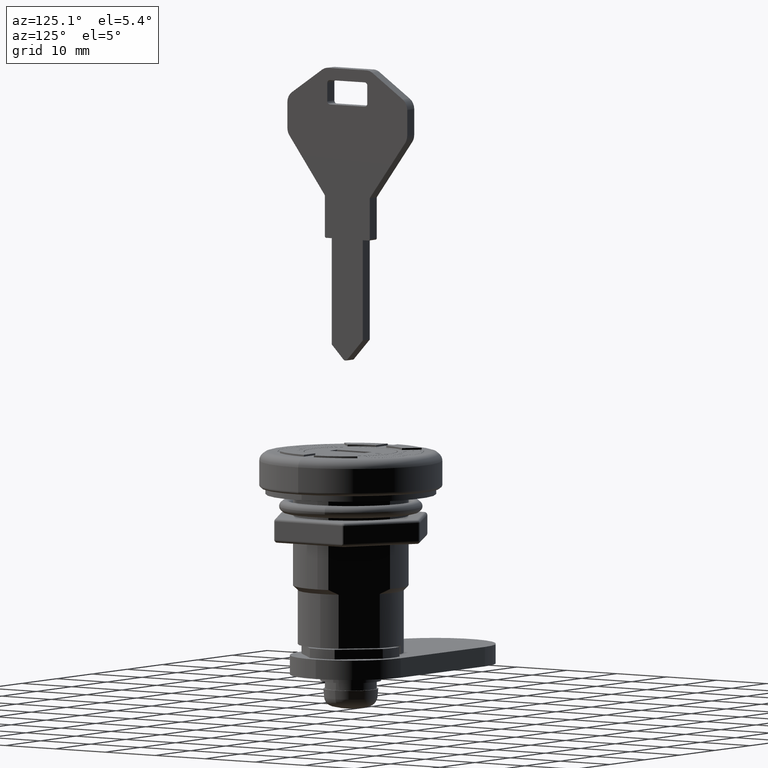
[diagram: clean part render]
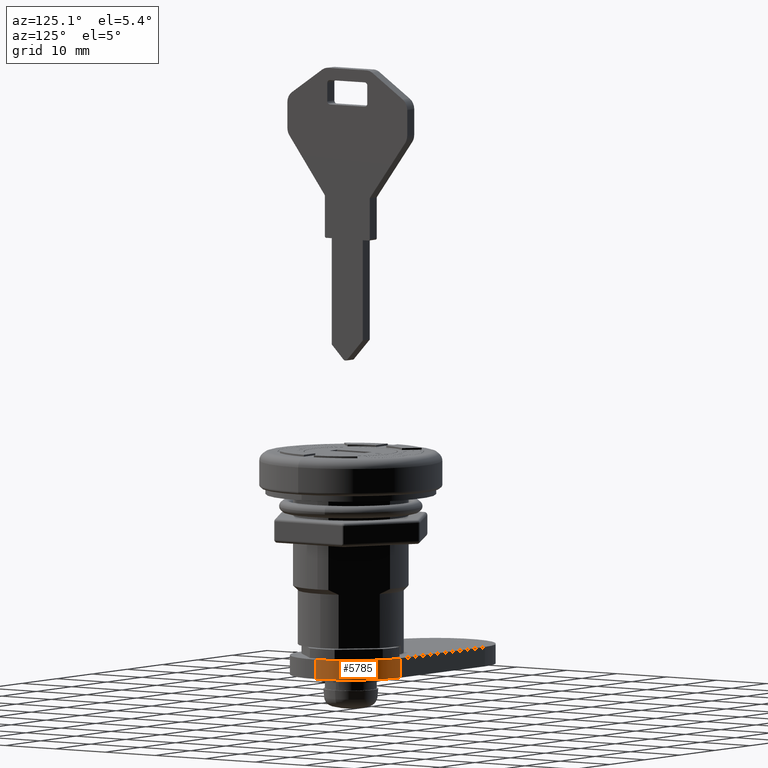
[diagram: same view with one face highlighted and labeled with its STEP entity id]
A machine part, auxiliary view. The second image highlights one B-rep face of the part: STEP entity #5785.
In plain terms, the highlighted cylindrical surface (partial cylindrical patch) has radius 10 mm, axis along (0, 0, 1).
Its self-contained STEP definition (entity closure, byte-faithful):
#25 = CARTESIAN_POINT ( 'NONE',  ( -1.224646799147352900E-015, 9.999999999999994700, 0.0000000000000000000 ) ) ;
#154 = CIRCLE ( 'NONE', #6340, 9.999999999999994700 ) ;
#173 = AXIS2_PLACEMENT_3D ( 'NONE', #3369, #5933, #6543 ) ;
#190 = EDGE_CURVE ( 'NONE', #372, #2949, #154, .T. ) ;
#202 = DIRECTION ( 'NONE',  ( 0.0000000000000000000, 0.0000000000000000000, 1.000000000000000000 ) ) ;
#276 = EDGE_CURVE ( 'NONE', #4868, #372, #7861, .T. ) ;
#372 = VERTEX_POINT ( 'NONE', #918 ) ;
#918 = CARTESIAN_POINT ( 'NONE',  ( 9.999999999999992900, 0.0000000000000000000, 0.0000000000000000000 ) ) ;
#1305 = DIRECTION ( 'NONE',  ( 1.000000000000000000, 0.0000000000000000000, 0.0000000000000000000 ) ) ;
#1412 = DIRECTION ( 'NONE',  ( 0.0000000000000000000, 0.0000000000000000000, 1.000000000000000000 ) ) ;
#2277 = EDGE_CURVE ( 'NONE', #8059, #2949, #2347, .T. ) ;
#2285 = FACE_OUTER_BOUND ( 'NONE', #6899, .T. ) ;
#2335 = DIRECTION ( 'NONE',  ( 0.0000000000000000000, 0.0000000000000000000, 1.000000000000000000 ) ) ;
#2344 = ORIENTED_EDGE ( 'NONE', *, *, #2277, .T. ) ;
#2347 = LINE ( 'NONE', #6903, #4074 ) ;
#2743 = CARTESIAN_POINT ( 'NONE',  ( 9.999999999999992900, 0.0000000000000000000, -3.200000000000000200 ) ) ;
#2949 = VERTEX_POINT ( 'NONE', #25 ) ;
#3057 = ORIENTED_EDGE ( 'NONE', *, *, #190, .F. ) ;
#3060 = CARTESIAN_POINT ( 'NONE',  ( -1.224646799147352900E-015, 9.999999999999994700, -3.200000000000000200 ) ) ;
#3369 = CARTESIAN_POINT ( 'NONE',  ( -1.734723475976807100E-015, 0.0000000000000000000, -3.200000000000000200 ) ) ;
#3736 = CARTESIAN_POINT ( 'NONE',  ( -1.734723475976807100E-015, 0.0000000000000000000, -3.200000000000000200 ) ) ;
#3808 = CYLINDRICAL_SURFACE ( 'NONE', #173, 9.999999999999994700 ) ;
#3950 = EDGE_CURVE ( 'NONE', #4868, #8059, #7133, .T. ) ;
#4074 = VECTOR ( 'NONE', #2335, 1000.000000000000000 ) ;
#4394 = DIRECTION ( 'NONE',  ( 1.000000000000000000, 0.0000000000000000000, 0.0000000000000000000 ) ) ;
#4527 = AXIS2_PLACEMENT_3D ( 'NONE', #3736, #8193, #4394 ) ;
#4604 = ORIENTED_EDGE ( 'NONE', *, *, #3950, .T. ) ;
#4868 = VERTEX_POINT ( 'NONE', #8091 ) ;
#5785 = ADVANCED_FACE ( 'NONE', ( #2285 ), #3808, .T. ) ;
#5933 = DIRECTION ( 'NONE',  ( 0.0000000000000000000, 0.0000000000000000000, 1.000000000000000000 ) ) ;
#6340 = AXIS2_PLACEMENT_3D ( 'NONE', #6815, #1412, #1305 ) ;
#6543 = DIRECTION ( 'NONE',  ( 1.000000000000000000, 0.0000000000000000000, 0.0000000000000000000 ) ) ;
#6815 = CARTESIAN_POINT ( 'NONE',  ( -1.734723475976807100E-015, 0.0000000000000000000, 0.0000000000000000000 ) ) ;
#6899 = EDGE_LOOP ( 'NONE', ( #7064, #4604, #2344, #3057 ) ) ;
#6903 = CARTESIAN_POINT ( 'NONE',  ( -1.224646799147352900E-015, 9.999999999999994700, -3.200000000000000200 ) ) ;
#7064 = ORIENTED_EDGE ( 'NONE', *, *, #276, .F. ) ;
#7133 = CIRCLE ( 'NONE', #4527, 9.999999999999994700 ) ;
#7667 = VECTOR ( 'NONE', #202, 1000.000000000000000 ) ;
#7861 = LINE ( 'NONE', #2743, #7667 ) ;
#8059 = VERTEX_POINT ( 'NONE', #3060 ) ;
#8091 = CARTESIAN_POINT ( 'NONE',  ( 9.999999999999992900, 0.0000000000000000000, -3.200000000000000200 ) ) ;
#8193 = DIRECTION ( 'NONE',  ( 0.0000000000000000000, 0.0000000000000000000, 1.000000000000000000 ) ) ;